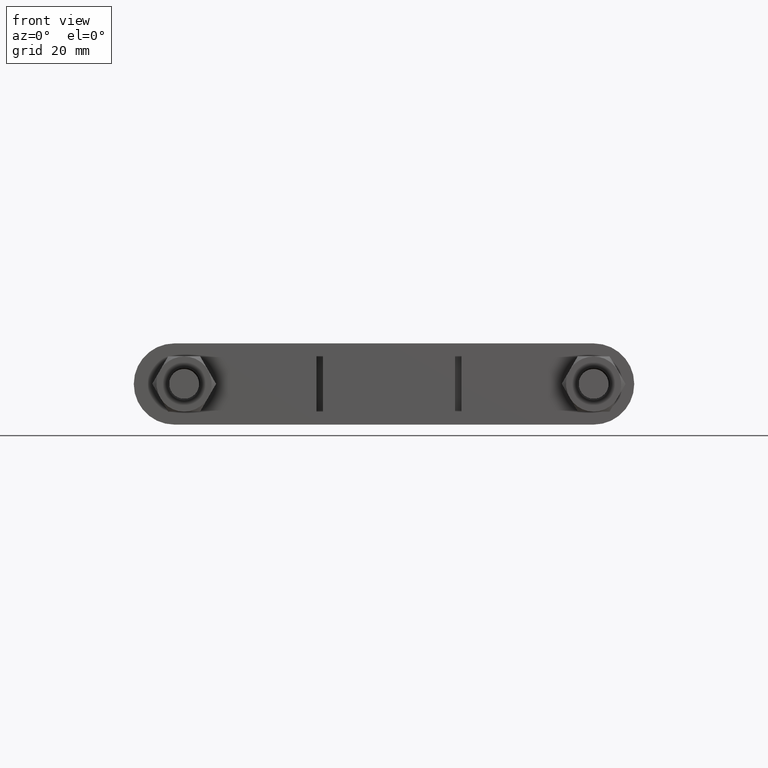
[diagram: clean part render]
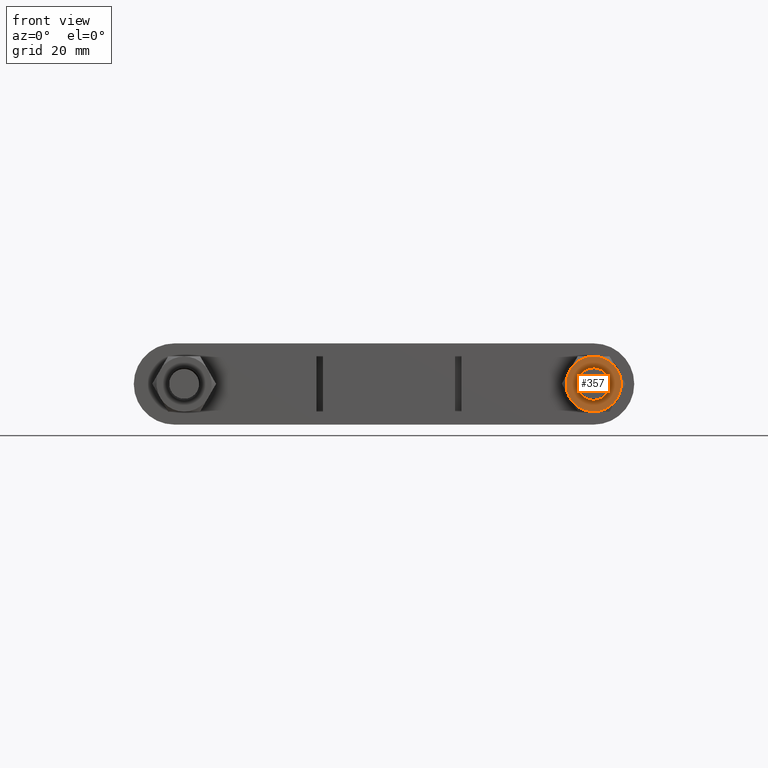
[diagram: same view with one face highlighted and labeled with its STEP entity id]
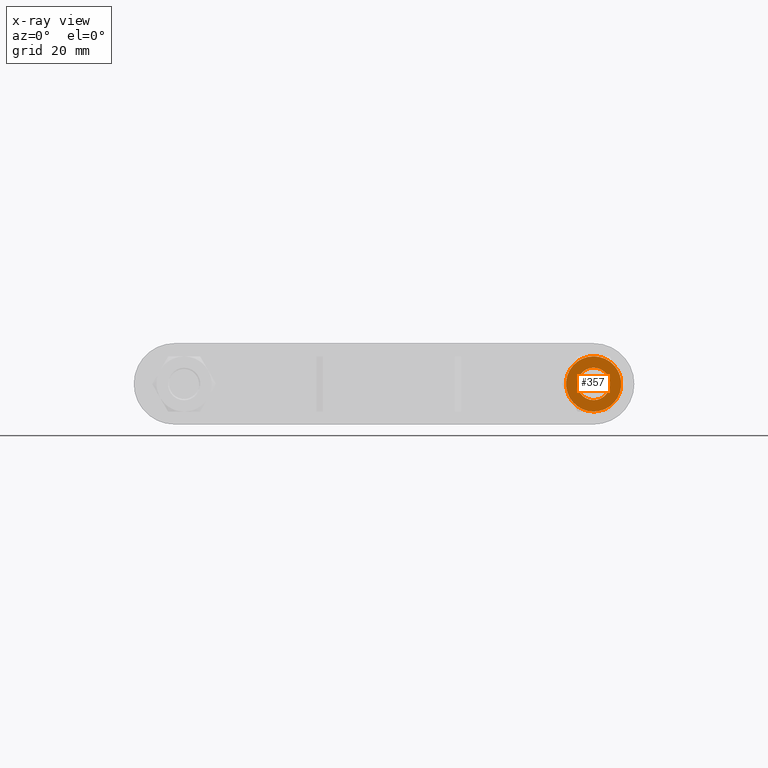
[diagram: x-ray of the same camera — body ghosted, the highlighted face saturated]
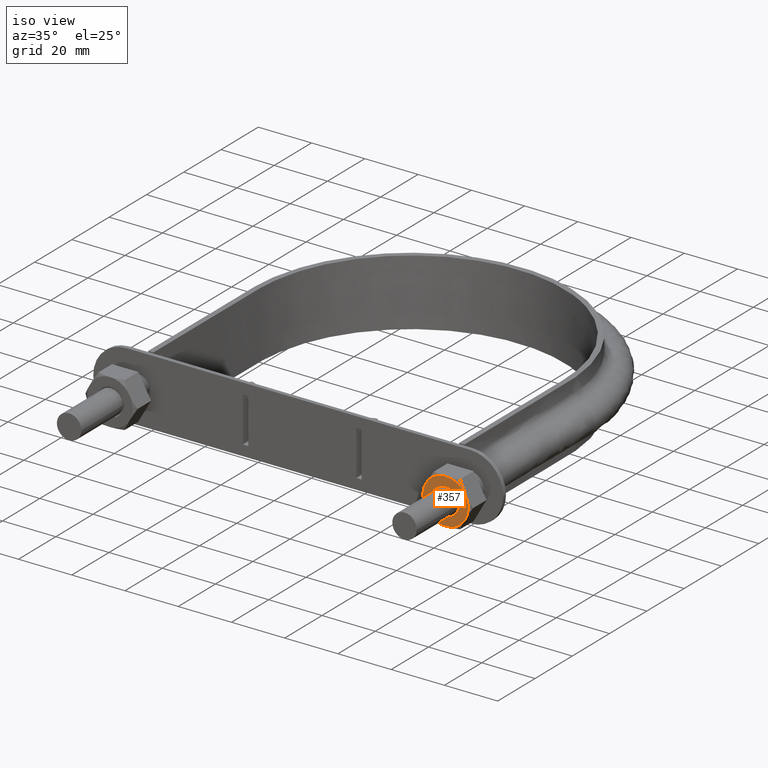
[diagram: same view with one face highlighted and labeled with its STEP entity id]
A machine part, front view. The second image highlights one B-rep face of the part: STEP entity #357.
The next image is the same camera in x-ray: the body ghosted, the highlighted face saturated — about 0% of this face is hidden behind the body in this view.
A second angle (iso view) of the same face is appended — the face is thin or edge-on in the first view.
In plain terms, the highlighted planar face has unit normal (0, 1, 0).
Its self-contained STEP definition (entity closure, byte-faithful):
#357 = ADVANCED_FACE( '', ( #583, #584 ), #585, .F. );
#583 = FACE_OUTER_BOUND( '', #1490, .T. );
#584 = FACE_BOUND( '', #1491, .T. );
#585 = PLANE( '', #1492 );
#1490 = EDGE_LOOP( '', ( #2193, #2194, #2195, #2196, #2197, #2198 ) );
#1491 = EDGE_LOOP( '', ( #2199 ) );
#1492 = AXIS2_PLACEMENT_3D( '', #2200, #2201, #2202 );
#2193 = ORIENTED_EDGE( '', *, *, #2549, .F. );
#2194 = ORIENTED_EDGE( '', *, *, #2550, .F. );
#2195 = ORIENTED_EDGE( '', *, *, #2551, .F. );
#2196 = ORIENTED_EDGE( '', *, *, #2552, .F. );
#2197 = ORIENTED_EDGE( '', *, *, #2547, .F. );
#2198 = ORIENTED_EDGE( '', *, *, #2553, .F. );
#2199 = ORIENTED_EDGE( '', *, *, #2554, .T. );
#2200 = CARTESIAN_POINT( '', ( 63.0000000000000, 22.0000000000003, 1.38138198796379E-015 ) );
#2201 = DIRECTION( '', ( 2.44921270764475E-016, 1.00000000000000, 6.12303176911189E-017 ) );
#2202 = DIRECTION( '', ( -1.00743302589056E-011, 6.12303176935863E-017, -1.00000000000000 ) );
#2547 = EDGE_CURVE( '', #2908, #2910, #2911, .T. );
#2549 = EDGE_CURVE( '', #2913, #2914, #2915, .T. );
#2550 = EDGE_CURVE( '', #2916, #2913, #2917, .T. );
#2551 = EDGE_CURVE( '', #2918, #2916, #2919, .T. );
#2552 = EDGE_CURVE( '', #2910, #2918, #2920, .T. );
#2553 = EDGE_CURVE( '', #2914, #2908, #2921, .T. );
#2554 = EDGE_CURVE( '', #2922, #2922, #2923, .T. );
#2908 = VERTEX_POINT( '', #3700 );
#2910 = VERTEX_POINT( '', #3707 );
#2911 = CIRCLE( '', #3708, 8.49999999999701 );
#2913 = VERTEX_POINT( '', #3717 );
#2914 = VERTEX_POINT( '', #3718 );
#2915 = CIRCLE( '', #3719, 8.49999999999701 );
#2916 = VERTEX_POINT( '', #3720 );
#2917 = CIRCLE( '', #3721, 8.49999999999701 );
#2918 = VERTEX_POINT( '', #3722 );
#2919 = CIRCLE( '', #3723, 8.49999999999701 );
#2920 = CIRCLE( '', #3724, 8.49999999999701 );
#2921 = CIRCLE( '', #3725, 8.49999999999701 );
#2922 = VERTEX_POINT( '', #3726 );
#2923 = CIRCLE( '', #3727, 4.99999999999824 );
#3700 = CARTESIAN_POINT( '', ( 63.0000000000856, 22.0000000000003, 8.49999999999701 ) );
#3707 = CARTESIAN_POINT( '', ( 70.3612159322077, 22.0000000000003, 4.24999999992435 ) );
#3708 = AXIS2_PLACEMENT_3D( '', #4142, #4143, #4144 );
#3717 = CARTESIAN_POINT( '', ( 55.6387840677923, 22.0000000000003, -4.24999999992435 ) );
#3718 = CARTESIAN_POINT( '', ( 55.6387840678779, 22.0000000000003, 4.25000000007267 ) );
#3719 = AXIS2_PLACEMENT_3D( '', #4145, #4146, #4147 );
#3720 = CARTESIAN_POINT( '', ( 62.9999999999144, 22.0000000000003, -8.49999999999701 ) );
#3721 = AXIS2_PLACEMENT_3D( '', #4148, #4149, #4150 );
#3722 = CARTESIAN_POINT( '', ( 70.3612159321221, 22.0000000000003, -4.25000000007266 ) );
#3723 = AXIS2_PLACEMENT_3D( '', #4151, #4152, #4153 );
#3724 = AXIS2_PLACEMENT_3D( '', #4154, #4155, #4156 );
#3725 = AXIS2_PLACEMENT_3D( '', #4157, #4158, #4159 );
#3726 = CARTESIAN_POINT( '', ( 62.9999999999496, 22.0000000000003, -4.99999999999824 ) );
#3727 = AXIS2_PLACEMENT_3D( '', #4160, #4161, #4162 );
#4142 = CARTESIAN_POINT( '', ( 63.0000000000000, 22.0000000000003, 1.38138198796379E-015 ) );
#4143 = DIRECTION( '', ( 2.44921270764475E-016, 1.00000000000000, 6.12303176911189E-017 ) );
#4144 = DIRECTION( '', ( -1.00743302589056E-011, 6.12303176935863E-017, -1.00000000000000 ) );
#4145 = CARTESIAN_POINT( '', ( 63.0000000000000, 22.0000000000003, 1.38138198796379E-015 ) );
#4146 = DIRECTION( '', ( 2.44921270764475E-016, 1.00000000000000, 6.12303176911189E-017 ) );
#4147 = DIRECTION( '', ( -1.00743302589056E-011, 6.12303176935863E-017, -1.00000000000000 ) );
#4148 = CARTESIAN_POINT( '', ( 63.0000000000000, 22.0000000000003, 1.38138198796379E-015 ) );
#4149 = DIRECTION( '', ( 2.44921270764475E-016, 1.00000000000000, 6.12303176911189E-017 ) );
#4150 = DIRECTION( '', ( -1.00743302589056E-011, 6.12303176935863E-017, -1.00000000000000 ) );
#4151 = CARTESIAN_POINT( '', ( 63.0000000000000, 22.0000000000003, 1.38138198796379E-015 ) );
#4152 = DIRECTION( '', ( 2.44921270764475E-016, 1.00000000000000, 6.12303176911189E-017 ) );
#4153 = DIRECTION( '', ( -1.00743302589056E-011, 6.12303176935863E-017, -1.00000000000000 ) );
#4154 = CARTESIAN_POINT( '', ( 63.0000000000000, 22.0000000000003, 1.38138198796379E-015 ) );
#4155 = DIRECTION( '', ( 2.44921270764475E-016, 1.00000000000000, 6.12303176911189E-017 ) );
#4156 = DIRECTION( '', ( -1.00743302589056E-011, 6.12303176935863E-017, -1.00000000000000 ) );
#4157 = CARTESIAN_POINT( '', ( 63.0000000000000, 22.0000000000003, 1.38138198796379E-015 ) );
#4158 = DIRECTION( '', ( 2.44921270764475E-016, 1.00000000000000, 6.12303176911189E-017 ) );
#4159 = DIRECTION( '', ( -1.00743302589056E-011, 6.12303176935863E-017, -1.00000000000000 ) );
#4160 = CARTESIAN_POINT( '', ( 63.0000000000000, 22.0000000000003, 1.38138198796379E-015 ) );
#4161 = DIRECTION( '', ( 2.44921270764475E-016, 1.00000000000000, 6.12303176911189E-017 ) );
#4162 = DIRECTION( '', ( -1.00743302589056E-011, 6.12303176935863E-017, -1.00000000000000 ) );